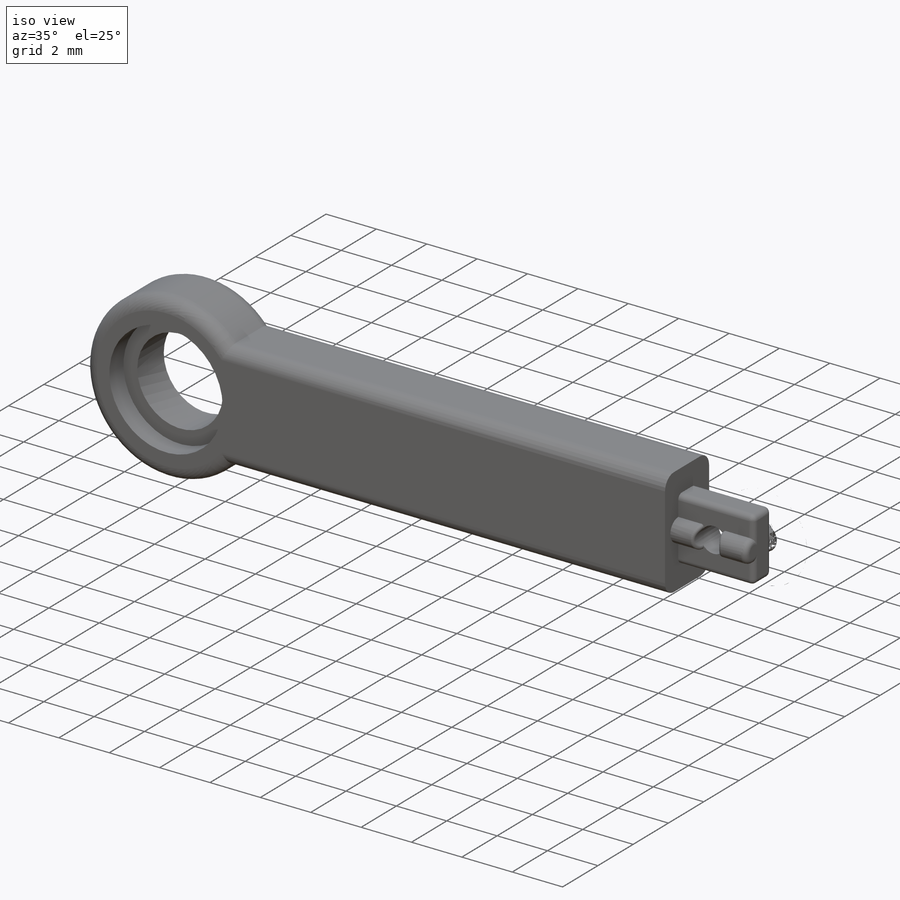
[diagram: iso view]
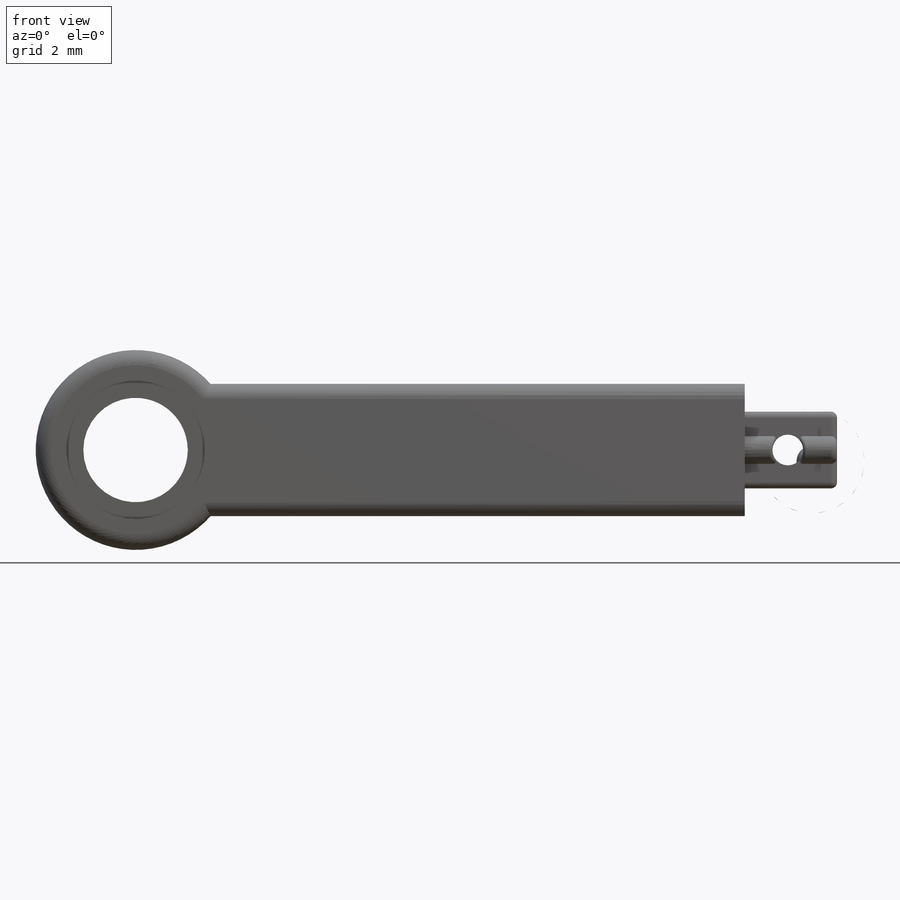
[diagram: front view]
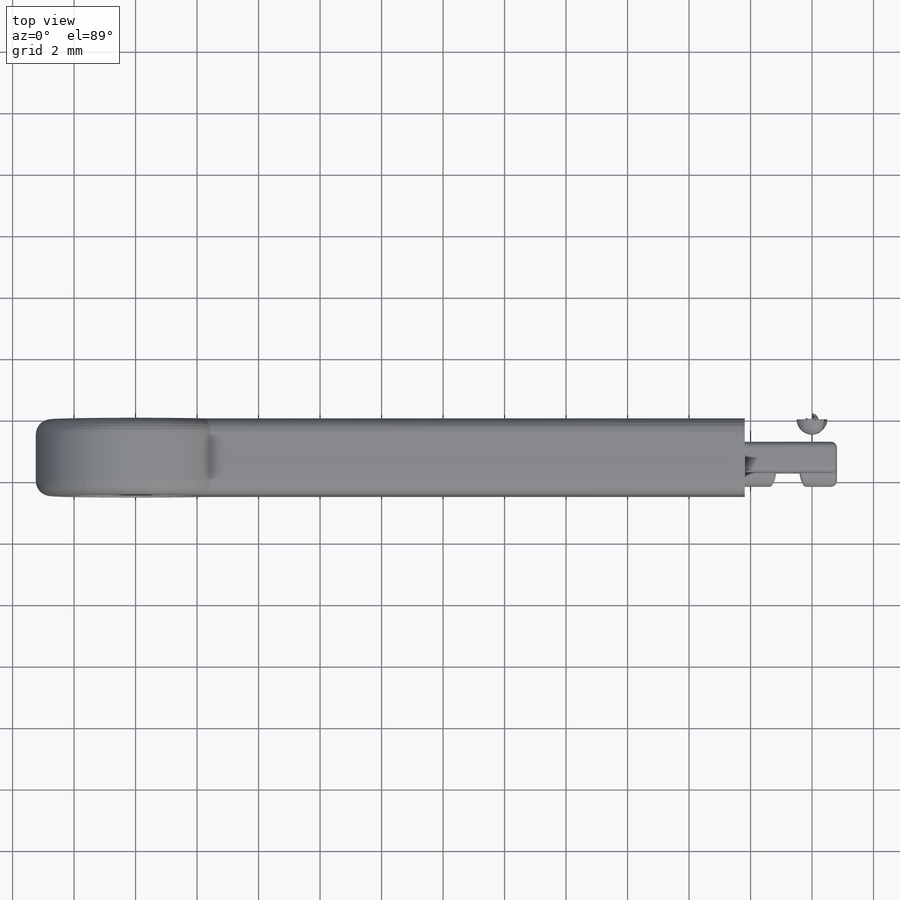
[diagram: top view]
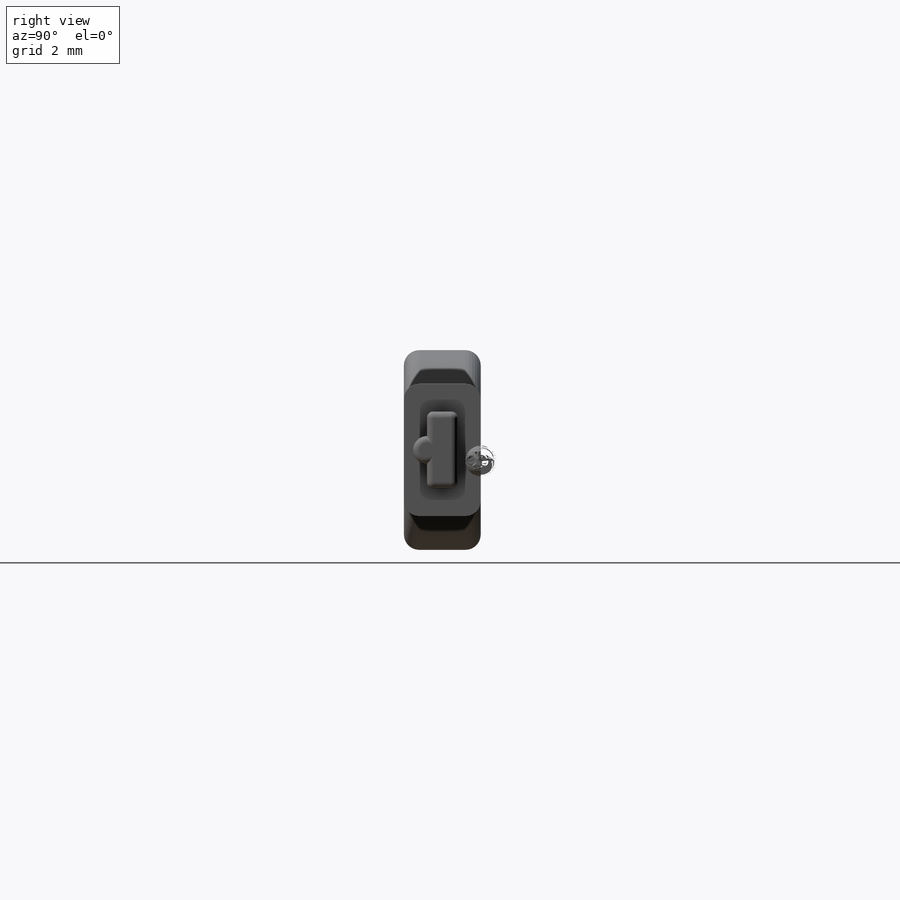
[diagram: right view]
SOLIDWORKS PART (.sldprt)
format: sldprt  version: not decoded by parser v0  size: 441,344 bytes
history: native  units: mm
features: sketch x4, fillet x3, extrude x2, cut_extrude x2, material x1, chamfer x1 (+13 scaffold rows collapsed)
feature tree (26):
  scaffold x13  (default folders/planes/origin — collapsed)
  material  "ABS"
  sketch  "Sketch1"  dims[c1.D3=3.4mm c1.D4=6.5mm c1.D1=22.0mm c1.D2=22.0mm c1.D5=4.3mm c1.D6=1.0mm c2.D1=20.313mm]
  extrude  "Boss-Extrude1"  Depth=2.5mm
  sketch  "Sketch2"  dims[D1=4.5mm]
  cut_extrude  "Cut-Extrude1"  Depth=0.8mm
  chamfer  "Chamfer1"  Distance=0.2mm Angle=45deg
  fillet  "Fillet1"  Radius=0.5mm
  sketch  "Sketch3"  dims[D3=0.45mm D1=1.0mm D2=2.5mm]
  extrude  "Boss-Extrude2"  Depth=3mm
  fillet  "Fillet3"  Radius=0.2mm
  sketch  "Sketch4"  dims[D1=1.0mm]
  cut_extrude  "Cut-Extrude2"  Depth=10mm
  fillet  "Fillet4"  Radius=0.1mm
decode coverage: 12 of 12 modeling features carry decoded parameters
note: suppression state not decoded; provenance and decode notes live in map.json
